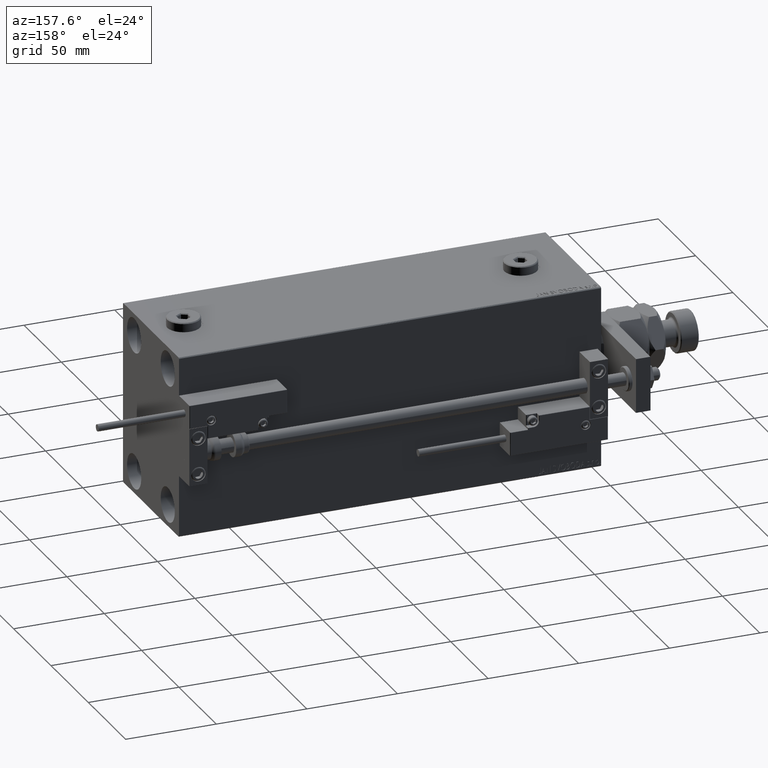
[diagram: clean part render]
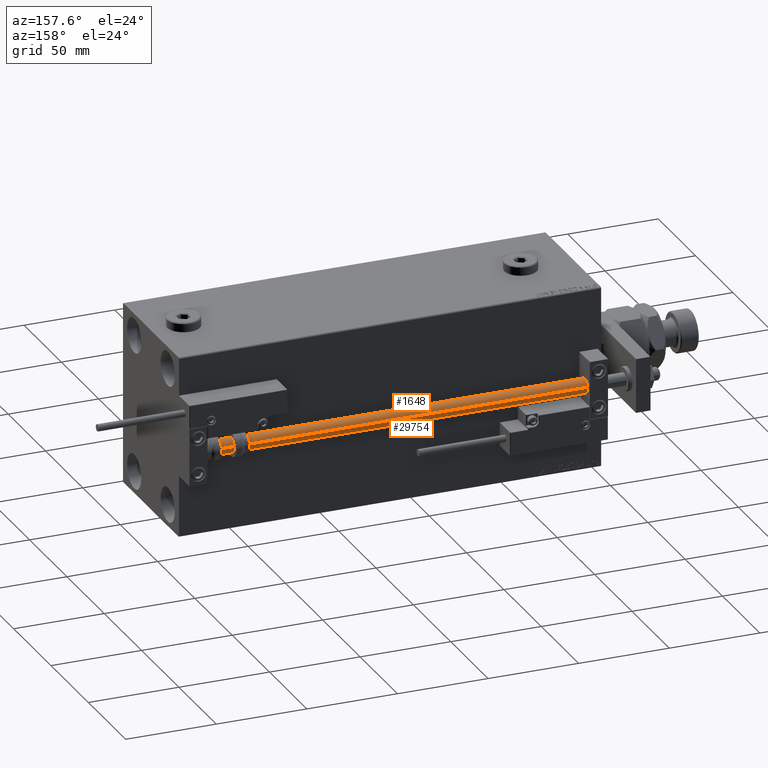
[diagram: same view with one multi-face feature highlighted, each face labeled with its STEP entity id]
A machine part, auxiliary view. The highlighted faces form ONE feature: a constant-radius fillet chain: 2 tangent blend faces with common blend radius 4 mm. The faces share edges in the B-rep.
Their STEP definitions:
[1] entity #29754 (Cylinder):
#562 = LINE ( 'NONE', #17014, #29312 ) ;
#2775 = AXIS2_PLACEMENT_3D ( 'NONE', #8020, #7753, #19345 ) ;
#3034 = DIRECTION ( 'NONE',  ( -0.000000000000000000, -0.000000000000000000, -1.000000000000000000 ) ) ;
#5416 = ORIENTED_EDGE ( 'NONE', *, *, #21090, .T. ) ;
#5427 = ORIENTED_EDGE ( 'NONE', *, *, #24888, .T. ) ;
#6975 = CARTESIAN_POINT ( 'NONE',  ( 0.000000000000000000, 0.000000000000000000, 233.0000000000000000 ) ) ;
#7051 = LINE ( 'NONE', #47788, #48324 ) ;
#7753 = DIRECTION ( 'NONE',  ( -0.000000000000000000, -0.000000000000000000, 1.000000000000000000 ) ) ;
#8020 = CARTESIAN_POINT ( 'NONE',  ( 0.000000000000000000, 0.000000000000000000, 2.000000000000029310 ) ) ;
#12753 = ORIENTED_EDGE ( 'NONE', *, *, #13965, .F. ) ;
#13965 = EDGE_CURVE ( 'NONE', #48203, #38308, #24074, .T. ) ;
#15069 = CARTESIAN_POINT ( 'NONE',  ( 4.000000000000000000, 4.898587196589412829E-16, 233.0000000000000000 ) ) ;
#16051 = EDGE_CURVE ( 'NONE', #38308, #28033, #562, .T. ) ;
#17014 = CARTESIAN_POINT ( 'NONE',  ( 4.000000000000000000, 4.898587196589412829E-16, 233.0000000000000000 ) ) ;
#17432 = CIRCLE ( 'NONE', #2775, 4.000000000000000000 ) ;
#18419 = CYLINDRICAL_SURFACE ( 'NONE', #24394, 4.000000000000000000 ) ;
#19345 = DIRECTION ( 'NONE',  ( 1.000000000000000000, 0.000000000000000000, 0.000000000000000000 ) ) ;
#21090 = EDGE_CURVE ( 'NONE', #48366, #28033, #17432, .T. ) ;
#22438 = ORIENTED_EDGE ( 'NONE', *, *, #16051, .F. ) ;
#24074 = CIRCLE ( 'NONE', #24951, 4.000000000000000000 ) ;
#24394 = AXIS2_PLACEMENT_3D ( 'NONE', #47275, #3034, #52127 ) ;
#24795 = DIRECTION ( 'NONE',  ( 1.000000000000000000, 0.000000000000000000, 0.000000000000000000 ) ) ;
#24888 = EDGE_CURVE ( 'NONE', #48203, #48366, #7051, .T. ) ;
#24951 = AXIS2_PLACEMENT_3D ( 'NONE', #6975, #39886, #24795 ) ;
#28033 = VERTEX_POINT ( 'NONE', #32670 ) ;
#29312 = VECTOR ( 'NONE', #33459, 1000.000000000000000 ) ;
#29754 = ADVANCED_FACE ( 'NONE', ( #43506 ), #18419, .T. ) ;
#32670 = CARTESIAN_POINT ( 'NONE',  ( 4.000000000000000000, 4.898587196589412829E-16, 2.000000000000029310 ) ) ;
#33459 = DIRECTION ( 'NONE',  ( -0.000000000000000000, -0.000000000000000000, -1.000000000000000000 ) ) ;
#35194 = EDGE_LOOP ( 'NONE', ( #22438, #12753, #5427, #5416 ) ) ;
#38308 = VERTEX_POINT ( 'NONE', #15069 ) ;
#39886 = DIRECTION ( 'NONE',  ( 0.000000000000000000, 0.000000000000000000, 1.000000000000000000 ) ) ;
#43210 = CARTESIAN_POINT ( 'NONE',  ( -4.000000000000000000, 0.000000000000000000, 233.0000000000000000 ) ) ;
#43506 = FACE_OUTER_BOUND ( 'NONE', #35194, .T. ) ;
#47275 = CARTESIAN_POINT ( 'NONE',  ( 0.000000000000000000, 0.000000000000000000, 233.0000000000000000 ) ) ;
#47788 = CARTESIAN_POINT ( 'NONE',  ( -4.000000000000000000, 0.000000000000000000, 233.0000000000000000 ) ) ;
#48203 = VERTEX_POINT ( 'NONE', #43210 ) ;
#48324 = VECTOR ( 'NONE', #48336, 1000.000000000000000 ) ;
#48336 = DIRECTION ( 'NONE',  ( -0.000000000000000000, -0.000000000000000000, -1.000000000000000000 ) ) ;
#48366 = VERTEX_POINT ( 'NONE', #49922 ) ;
#49922 = CARTESIAN_POINT ( 'NONE',  ( -4.000000000000000000, 0.000000000000000000, 2.000000000000029310 ) ) ;
#52127 = DIRECTION ( 'NONE',  ( -1.000000000000000000, 0.000000000000000000, 0.000000000000000000 ) ) ;
[2] entity #1648 (Cylinder):
#562 = LINE ( 'NONE', #17014, #29312 ) ;
#1648 = ADVANCED_FACE ( 'NONE', ( #24974 ), #20387, .T. ) ;
#3262 = AXIS2_PLACEMENT_3D ( 'NONE', #22230, #47827, #39473 ) ;
#6714 = CIRCLE ( 'NONE', #3262, 4.000000000000000000 ) ;
#7051 = LINE ( 'NONE', #47788, #48324 ) ;
#7080 = EDGE_CURVE ( 'NONE', #38308, #48203, #6714, .T. ) ;
#11869 = ORIENTED_EDGE ( 'NONE', *, *, #44369, .T. ) ;
#14462 = CIRCLE ( 'NONE', #44635, 4.000000000000000000 ) ;
#15069 = CARTESIAN_POINT ( 'NONE',  ( 4.000000000000000000, 4.898587196589412829E-16, 233.0000000000000000 ) ) ;
#16051 = EDGE_CURVE ( 'NONE', #38308, #28033, #562, .T. ) ;
#17014 = CARTESIAN_POINT ( 'NONE',  ( 4.000000000000000000, 4.898587196589412829E-16, 233.0000000000000000 ) ) ;
#20387 = CYLINDRICAL_SURFACE ( 'NONE', #22008, 4.000000000000000000 ) ;
#22008 = AXIS2_PLACEMENT_3D ( 'NONE', #32256, #41682, #24716 ) ;
#22230 = CARTESIAN_POINT ( 'NONE',  ( 0.000000000000000000, 0.000000000000000000, 233.0000000000000000 ) ) ;
#24716 = DIRECTION ( 'NONE',  ( -1.000000000000000000, 0.000000000000000000, 0.000000000000000000 ) ) ;
#24888 = EDGE_CURVE ( 'NONE', #48203, #48366, #7051, .T. ) ;
#24974 = FACE_OUTER_BOUND ( 'NONE', #31148, .T. ) ;
#26775 = DIRECTION ( 'NONE',  ( -0.000000000000000000, -0.000000000000000000, 1.000000000000000000 ) ) ;
#28033 = VERTEX_POINT ( 'NONE', #32670 ) ;
#29312 = VECTOR ( 'NONE', #33459, 1000.000000000000000 ) ;
#31148 = EDGE_LOOP ( 'NONE', ( #35794, #45392, #11869, #43503 ) ) ;
#32256 = CARTESIAN_POINT ( 'NONE',  ( 0.000000000000000000, 0.000000000000000000, 233.0000000000000000 ) ) ;
#32670 = CARTESIAN_POINT ( 'NONE',  ( 4.000000000000000000, 4.898587196589412829E-16, 2.000000000000029310 ) ) ;
#33459 = DIRECTION ( 'NONE',  ( -0.000000000000000000, -0.000000000000000000, -1.000000000000000000 ) ) ;
#35794 = ORIENTED_EDGE ( 'NONE', *, *, #7080, .F. ) ;
#38308 = VERTEX_POINT ( 'NONE', #15069 ) ;
#38897 = CARTESIAN_POINT ( 'NONE',  ( 0.000000000000000000, 0.000000000000000000, 2.000000000000029310 ) ) ;
#39473 = DIRECTION ( 'NONE',  ( 1.000000000000000000, 0.000000000000000000, 0.000000000000000000 ) ) ;
#41682 = DIRECTION ( 'NONE',  ( -0.000000000000000000, -0.000000000000000000, -1.000000000000000000 ) ) ;
#43210 = CARTESIAN_POINT ( 'NONE',  ( -4.000000000000000000, 0.000000000000000000, 233.0000000000000000 ) ) ;
#43503 = ORIENTED_EDGE ( 'NONE', *, *, #24888, .F. ) ;
#44369 = EDGE_CURVE ( 'NONE', #28033, #48366, #14462, .T. ) ;
#44635 = AXIS2_PLACEMENT_3D ( 'NONE', #38897, #26775, #47263 ) ;
#45392 = ORIENTED_EDGE ( 'NONE', *, *, #16051, .T. ) ;
#47263 = DIRECTION ( 'NONE',  ( 1.000000000000000000, 0.000000000000000000, 0.000000000000000000 ) ) ;
#47788 = CARTESIAN_POINT ( 'NONE',  ( -4.000000000000000000, 0.000000000000000000, 233.0000000000000000 ) ) ;
#47827 = DIRECTION ( 'NONE',  ( 0.000000000000000000, 0.000000000000000000, 1.000000000000000000 ) ) ;
#48203 = VERTEX_POINT ( 'NONE', #43210 ) ;
#48324 = VECTOR ( 'NONE', #48336, 1000.000000000000000 ) ;
#48336 = DIRECTION ( 'NONE',  ( -0.000000000000000000, -0.000000000000000000, -1.000000000000000000 ) ) ;
#48366 = VERTEX_POINT ( 'NONE', #49922 ) ;
#49922 = CARTESIAN_POINT ( 'NONE',  ( -4.000000000000000000, 0.000000000000000000, 2.000000000000029310 ) ) ;